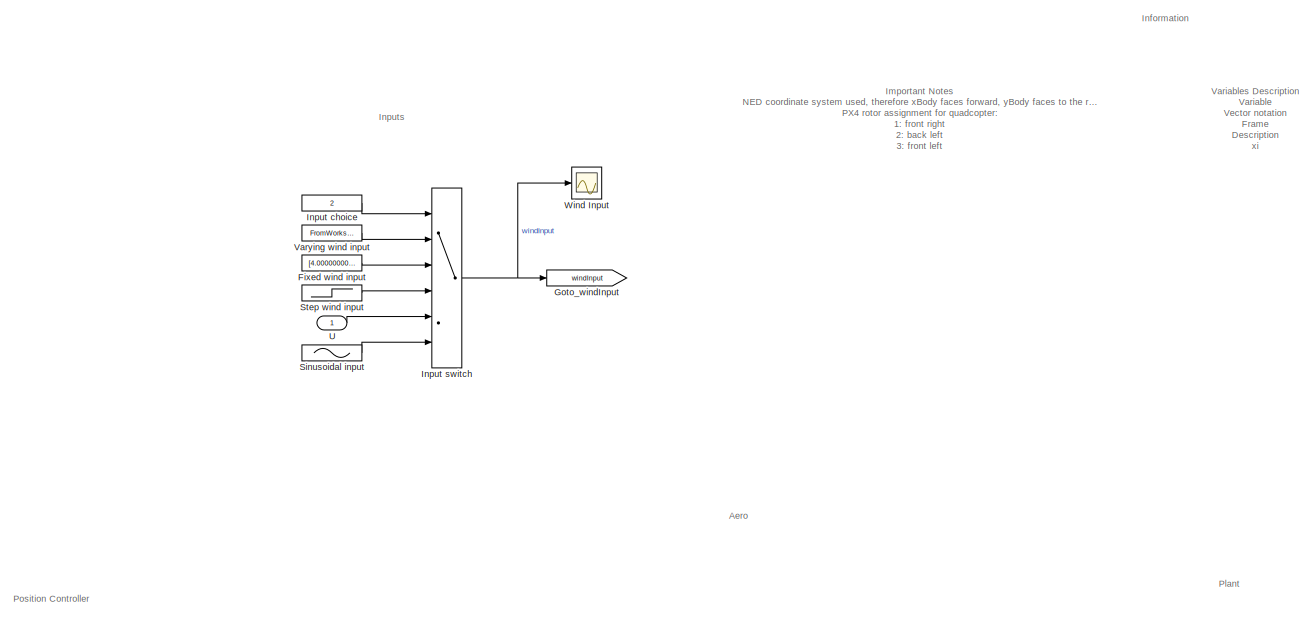
[diagram: root canvas - part 1/5, top center region]
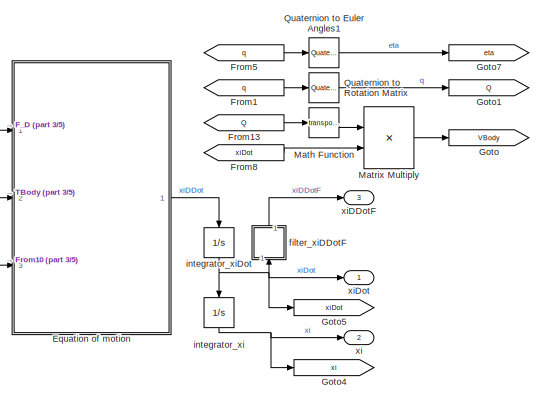
[diagram: root canvas - part 2/5, middle right region]
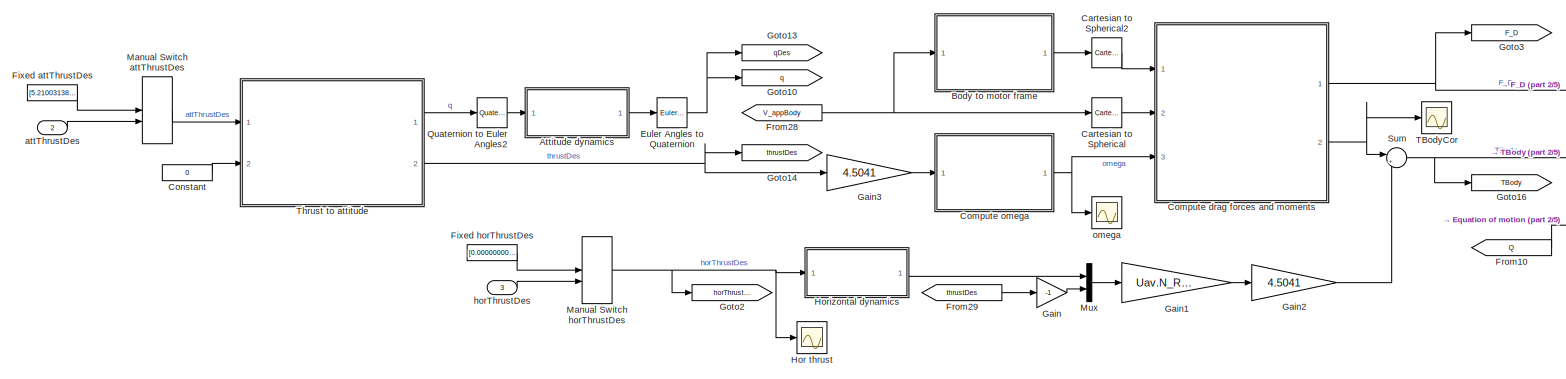
[diagram: root canvas - part 3/5, full width, middle band]
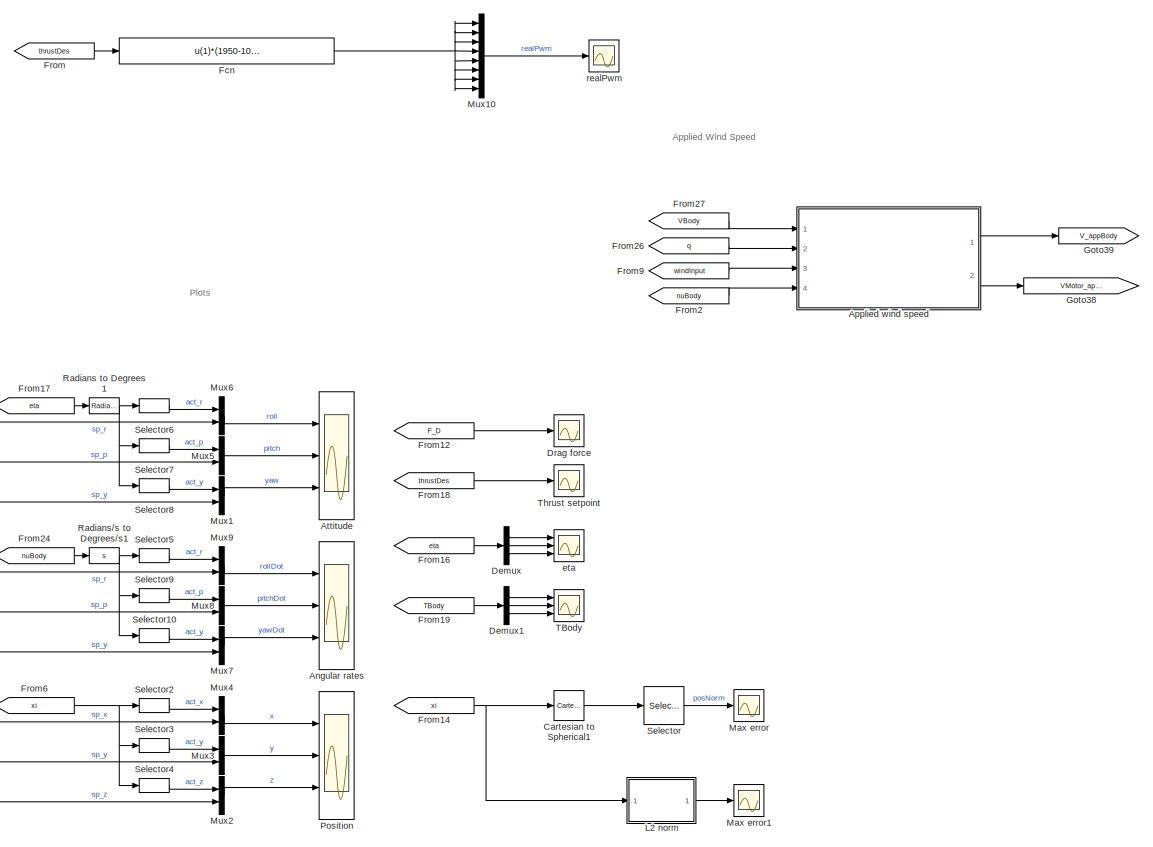
[diagram: root canvas - part 4/5, bottom right region]
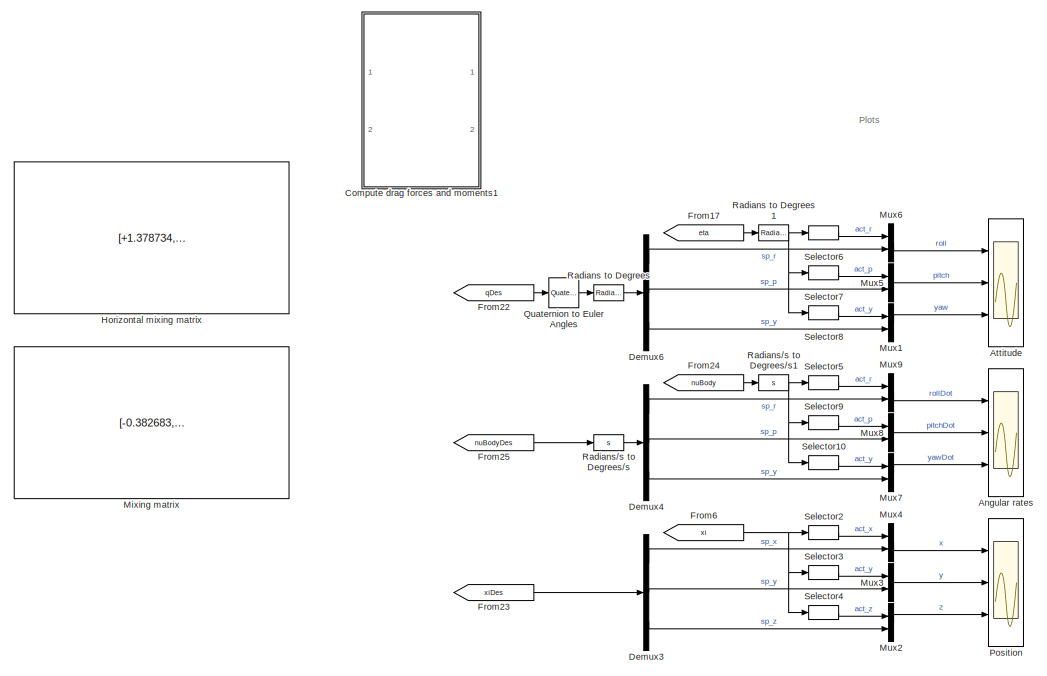
[diagram: root canvas - part 5/5, bottom center region]
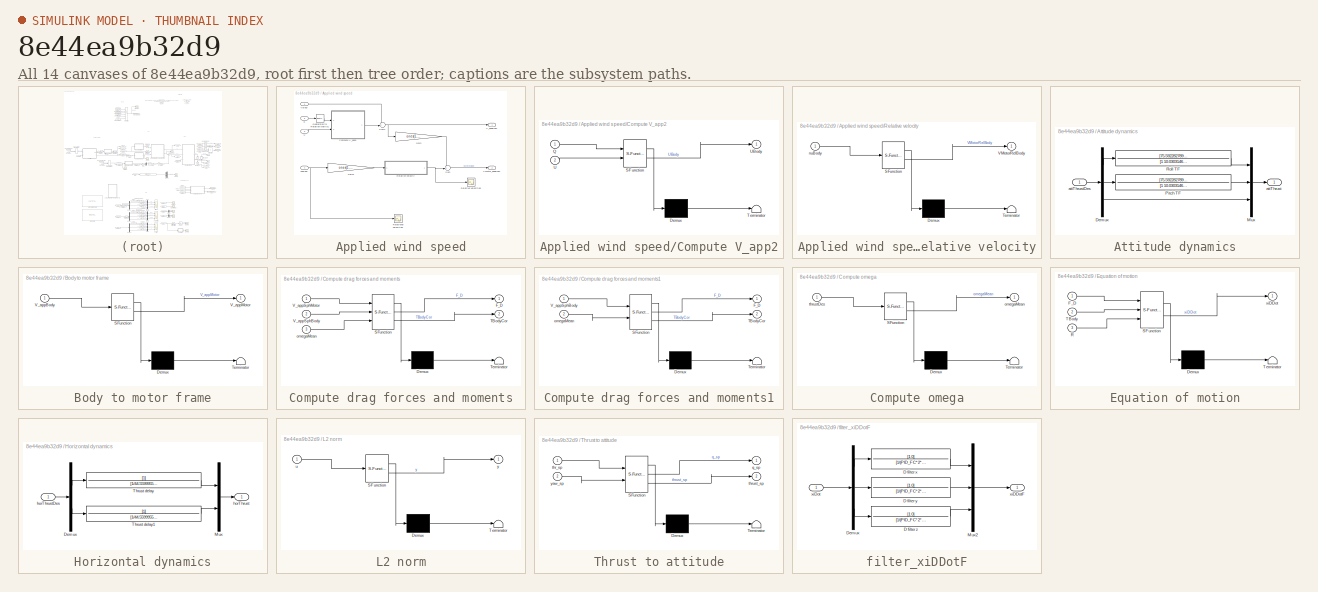
[diagram: thumbnail index - all 14 canvases of the model, root first then tree order]
MODEL slx_8e44ea9b32d9
KIND model
CONFIG AbsTol = auto
CONFIG EnableMultiTasking = on
CONFIG FixedStep = auto
CONFIG MaxStep = Simulation.TS_MAX
CONFIG MinStep = auto
CONFIG PreLoadFcn = % InitializeParameters;
CONFIG RelTol = 1e-3
CONFIG SampleTimeConstraint = Unconstrained
CONFIG SolverName = VariableStepAuto
CONFIG StartTime = 0.0
CONFIG StopTime = Simulation.T_END
BLOCK [Scope] Angular rates
  Floating = off
  NumInputPorts = 3
  Ports = [3]
  ScopeSpecificationString = Simulink.scopes.TimeScopeBlockCfg('CurrentConfiguration', extmgr.ConfigurationSet(extmgr.Configuration('Core','General UI',true),extmgr.Configuration('Core','Source UI',true),extmgr.Configuration('Sources','WiredSimulink',true,'DataLoggingVariableName','ScopeData1'),extmgr.Configuration('Visuals','Time Domain',true,'SerializedDisplays',{struct('MinYLimReal','-4.01617','MaxYLimReal','7.15197','YLab...<+2839ch>
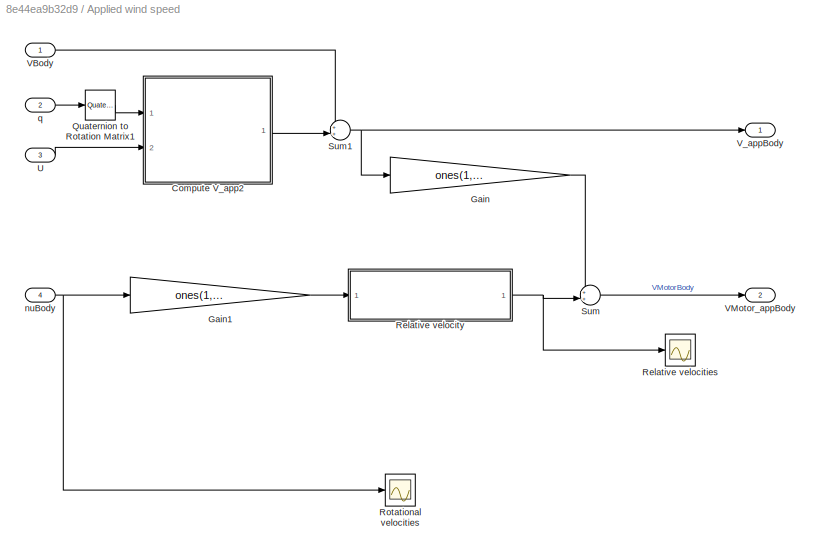
BLOCK [SubSystem] Applied wind speed
  Ports = [4, 2]
  RequestExecContextInheritance = off
BLOCK [SubSystem] Applied wind speed/Compute V_app2
  ErrorFcn = Stateflow.Translate.translate
  PermitHierarchicalResolution = ExplicitOnly
  Ports = [2, 1]
  RequestExecContextInheritance = off
  SFBlockType = MATLAB Function
  TreatAsAtomicUnit = on
BLOCK [Demux] Applied wind speed/Compute V_app2/ Demux 
  Outputs = 1
  Ports = [1, 1]
BLOCK [S-Function] Applied wind speed/Compute V_app2/ SFunction 
  EnableBusSupport = on
  FunctionName = sf_sfun
  PortCounts = [2 2]
  Ports = [2, 2]
  SFcnIsStateOwnerBlock = off
  SFunctionDeploymentMode = off
  Tag = Stateflow S-Function 5
BLOCK [Terminator] Applied wind speed/Compute V_app2/ Terminator 
BLOCK [Inport] Applied wind speed/Compute V_app2/Q
BLOCK [Inport] Applied wind speed/Compute V_app2/U
  Port = 2
BLOCK [Outport] Applied wind speed/Compute V_app2/UBody
  VectorParamsAs1DForOutWhenUnconnected = off
BLOCK [Gain] Applied wind speed/Gain
  Gain = ones(1,Uav.N_ROTORS)
  Multiplication = Matrix(u*K)
BLOCK [Gain] Applied wind speed/Gain1
  Gain = ones(1,Uav.N_ROTORS)
  Multiplication = Matrix(u*K)
BLOCK [Reference] Applied wind speed/Quaternion to Rotation Matrix1  REF=QuaternionLibrary/Quaternion
to Rotation Matrix
  Ports = [1, 1]
  SourceBlock = QuaternionLibrary/Quaternion\nto Rotation Matrix
BLOCK [Scope] Applied wind speed/Relative velocities
  Floating = off
  NumInputPorts = 1
  Ports = [1]
  ScopeSpecificationString = Simulink.scopes.TimeScopeBlockCfg('CurrentConfiguration', extmgr.ConfigurationSet(extmgr.Configuration('Core','General UI',true),extmgr.Configuration('Core','Source UI',true),extmgr.Configuration('Sources','WiredSimulink',true,'DataLoggingVariableName','ScopeData7'),extmgr.Configuration('Visuals','Time Domain',true,'SerializedDisplays',{struct('MinYLimReal','-0.10082','MaxYLimReal','0.10082','YLab...<+1971ch>
BLOCK [SubSystem] Applied wind speed/Relative velocity
  ErrorFcn = Stateflow.Translate.translate
  PermitHierarchicalResolution = ExplicitOnly
  Ports = [1, 1]
  RequestExecContextInheritance = off
  SFBlockType = MATLAB Function
  TreatAsAtomicUnit = on
BLOCK [Demux] Applied wind speed/Relative velocity/ Demux 
  Outputs = 1
  Ports = [1, 1]
BLOCK [S-Function] Applied wind speed/Relative velocity/ SFunction 
  EnableBusSupport = on
  FunctionName = sf_sfun
  Parameters = Uav
  PortCounts = [1 2]
  Ports = [1, 2]
  SFcnIsStateOwnerBlock = off
  SFunctionDeploymentMode = off
  Tag = Stateflow S-Function 4
BLOCK [Terminator] Applied wind speed/Relative velocity/ Terminator 
BLOCK [Outport] Applied wind speed/Relative velocity/VMotorRelBody
  VectorParamsAs1DForOutWhenUnconnected = off
BLOCK [Inport] Applied wind speed/Relative velocity/nuBody
BLOCK [Scope] Applied wind speed/Rotational velocities
  Floating = off
  NumInputPorts = 1
  Ports = [1]
  ScopeSpecificationString = Simulink.scopes.TimeScopeBlockCfg('CurrentConfiguration', extmgr.ConfigurationSet(extmgr.Configuration('Core','General UI',true),extmgr.Configuration('Core','Source UI',true),extmgr.Configuration('Sources','WiredSimulink',true,'DataLoggingVariableName','ScopeData8'),extmgr.Configuration('Visuals','Time Domain',true,'SerializedDisplays',{struct('MinYLimReal','-0.22625','MaxYLimReal','0.41313','YLab...<+1461ch>
BLOCK [Sum] Applied wind speed/Sum
  Inputs = ++|
  Ports = [2, 1]
BLOCK [Sum] Applied wind speed/Sum1
  Inputs = ++|
  Ports = [2, 1]
BLOCK [Inport] Applied wind speed/U
  Port = 3
  Unit = m/s
BLOCK [Inport] Applied wind speed/VBody
  Unit = m/s
BLOCK [Outport] Applied wind speed/VMotor_appBody
  Port = 2
  PortDimensions = [3,Uav.N_ROTORS]
  Unit = m/s
  VectorParamsAs1DForOutWhenUnconnected = off
BLOCK [Outport] Applied wind speed/V_appBody
  Unit = m/s
  VectorParamsAs1DForOutWhenUnconnected = off
BLOCK [Inport] Applied wind speed/nuBody
  Port = 4
  Unit = rad/s
BLOCK [Inport] Applied wind speed/q
  Port = 2
BLOCK [Scope] Attitude
  Floating = off
  NumInputPorts = 3
  Ports = [3]
  ScopeSpecificationString = Simulink.scopes.TimeScopeBlockCfg('CurrentConfiguration', extmgr.ConfigurationSet(extmgr.Configuration('Core','General UI',true),extmgr.Configuration('Core','Source UI',true),extmgr.Configuration('Sources','WiredSimulink',true,'DataLoggingVariableName','ScopeData2'),extmgr.Configuration('Visuals','Time Domain',true,'SerializedDisplays',{struct('MinYLimReal','-1.00000','MaxYLimReal','1.00000','YLab...<+3140ch>
BLOCK [SubSystem] Attitude dynamics
  Ports = [1, 1]
  RequestExecContextInheritance = off
BLOCK [Demux] Attitude dynamics/Demux
  Outputs = 3
  Ports = [1, 3]
BLOCK [Mux] Attitude dynamics/Mux
  DisplayOption = bar
  Inputs = 3
  Ports = [3, 1]
BLOCK [TransferFcn] Attitude dynamics/Pitch TF
  ContinuousStateAttributes = {'pitchDot', 'pitch'}
  Denominator = [1 10.0303146294993 75.5922827897279]
  Numerator = [75.5922827897279]
BLOCK [TransferFcn] Attitude dynamics/Roll TF
  ContinuousStateAttributes = {'rollDot', 'roll'}
  Denominator = [1 10.0303146294993 75.5922827897279]
  Numerator = [75.5922827897279]
BLOCK [Outport] Attitude dynamics/attThrust
  VectorParamsAs1DForOutWhenUnconnected = off
BLOCK [Inport] Attitude dynamics/attThrustDes
BLOCK [SubSystem] Body to motor frame
  ErrorFcn = Stateflow.Translate.translate
  PermitHierarchicalResolution = ExplicitOnly
  Ports = [1, 1]
  RequestExecContextInheritance = off
  SFBlockType = MATLAB Function
  TreatAsAtomicUnit = on
BLOCK [Demux] Body to motor frame/ Demux 
  Outputs = 1
  Ports = [1, 1]
BLOCK [S-Function] Body to motor frame/ SFunction 
  EnableBusSupport = on
  FunctionName = sf_sfun
  Parameters = Uav
  PortCounts = [1 2]
  Ports = [1, 2]
  SFcnIsStateOwnerBlock = off
  SFunctionDeploymentMode = off
  Tag = Stateflow S-Function 1
BLOCK [Terminator] Body to motor frame/ Terminator 
BLOCK [Inport] Body to motor frame/V_appBody
BLOCK [Outport] Body to motor frame/V_appMotor
  VectorParamsAs1DForOutWhenUnconnected = off
BLOCK [Reference] Cartesian to Spherical  REF=QuaternionLibrary/Cartesian
to Spherical
  Ports = [1, 1]
  SourceBlock = QuaternionLibrary/Cartesian\nto Spherical
BLOCK [Reference] Cartesian to Spherical1  REF=QuaternionLibrary/Cartesian
to Spherical
  Ports = [1, 1]
  SourceBlock = QuaternionLibrary/Cartesian\nto Spherical
BLOCK [Reference] Cartesian to Spherical2  REF=QuaternionLibrary/Cartesian
to Spherical
  Ports = [1, 1]
  SourceBlock = QuaternionLibrary/Cartesian\nto Spherical
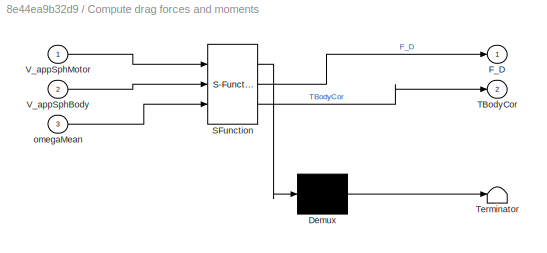
BLOCK [SubSystem] Compute drag forces and moments
  ErrorFcn = Stateflow.Translate.translate
  PermitHierarchicalResolution = ExplicitOnly
  Ports = [3, 2]
  RequestExecContextInheritance = off
  SFBlockType = MATLAB Function
  TreatAsAtomicUnit = on
BLOCK [Demux] Compute drag forces and moments/ Demux 
  Outputs = 1
  Ports = [1, 1]
BLOCK [S-Function] Compute drag forces and moments/ SFunction 
  EnableBusSupport = on
  FunctionName = sf_sfun
  Parameters = Aero,Uav
  PortCounts = [3 3]
  Ports = [3, 3]
  SFcnIsStateOwnerBlock = off
  SFunctionDeploymentMode = off
  Tag = Stateflow S-Function 9
BLOCK [Terminator] Compute drag forces and moments/ Terminator 
BLOCK [Outport] Compute drag forces and moments/F_D
  VectorParamsAs1DForOutWhenUnconnected = off
BLOCK [Outport] Compute drag forces and moments/TBodyCor
  Port = 2
  VectorParamsAs1DForOutWhenUnconnected = off
BLOCK [Inport] Compute drag forces and moments/V_appSphBody
  Port = 2
BLOCK [Inport] Compute drag forces and moments/V_appSphMotor
BLOCK [Inport] Compute drag forces and moments/omegaMean
  Port = 3
BLOCK [SubSystem] Compute drag forces and moments1
  Commented = on
  ErrorFcn = Stateflow.Translate.translate
  PermitHierarchicalResolution = ExplicitOnly
  Ports = [2, 2]
  RequestExecContextInheritance = off
  SFBlockType = MATLAB Function
  TreatAsAtomicUnit = on
BLOCK [Demux] Compute drag forces and moments1/ Demux 
  Outputs = 1
  Ports = [1, 1]
BLOCK [S-Function] Compute drag forces and moments1/ SFunction 
  EnableBusSupport = on
  FunctionName = sf_sfun
  Parameters = Aero,Uav
  PortCounts = [2 3]
  Ports = [2, 3]
  SFcnIsStateOwnerBlock = off
  SFunctionDeploymentMode = off
  Tag = Stateflow S-Function 3
BLOCK [Terminator] Compute drag forces and moments1/ Terminator 
BLOCK [Outport] Compute drag forces and moments1/F_D
  VectorParamsAs1DForOutWhenUnconnected = off
BLOCK [Outport] Compute drag forces and moments1/TBodyCor
  Port = 2
  VectorParamsAs1DForOutWhenUnconnected = off
BLOCK [Inport] Compute drag forces and moments1/V_appSphBody
BLOCK [Inport] Compute drag forces and moments1/omegaMean
  Port = 2
BLOCK [SubSystem] Compute omega
  ErrorFcn = Stateflow.Translate.translate
  PermitHierarchicalResolution = ExplicitOnly
  Ports = [1, 1]
  RequestExecContextInheritance = off
  SFBlockType = MATLAB Function
  TreatAsAtomicUnit = on
BLOCK [Demux] Compute omega/ Demux 
  Outputs = 1
  Ports = [1, 1]
BLOCK [S-Function] Compute omega/ SFunction 
  EnableBusSupport = on
  FunctionName = sf_sfun
  Parameters = Aero,Uav
  PortCounts = [1 2]
  Ports = [1, 2]
  SFcnIsStateOwnerBlock = off
  SFunctionDeploymentMode = off
  Tag = Stateflow S-Function 2
BLOCK [Terminator] Compute omega/ Terminator 
BLOCK [Outport] Compute omega/omegaMean
  VectorParamsAs1DForOutWhenUnconnected = off
BLOCK [Inport] Compute omega/thrustDes
BLOCK [Constant] Constant
  Value = 0
BLOCK [Demux] Demux
  Outputs = 3
  Ports = [1, 3]
BLOCK [Demux] Demux1
  Outputs = 3
  Ports = [1, 3]
BLOCK [Demux] Demux3
  Outputs = 3
  Ports = [1, 3]
BLOCK [Demux] Demux4
  Outputs = 3
  Ports = [1, 3]
BLOCK [Demux] Demux6
  Outputs = 3
  Ports = [1, 3]
BLOCK [Scope] Drag force
  Floating = off
  NumInputPorts = 1
  Ports = [1]
  ScopeSpecificationString = Simulink.scopes.TimeScopeBlockCfg('CurrentConfiguration', extmgr.ConfigurationSet(extmgr.Configuration('Core','General UI',true),extmgr.Configuration('Core','Source UI',true),extmgr.Configuration('Sources','WiredSimulink',true,'DataLoggingVariableName','ScopeData3'),extmgr.Configuration('Visuals','Time Domain',true,'SerializedDisplays',{struct('MinYLimReal','-0.87753','MaxYLimReal','0.20159','YLab...<+1461ch>
BLOCK [SubSystem] Equation of motion
  ErrorFcn = Stateflow.Translate.translate
  PermitHierarchicalResolution = ExplicitOnly
  Ports = [3, 1]
  RequestExecContextInheritance = off
  SFBlockType = MATLAB Function
  TreatAsAtomicUnit = on
BLOCK [Demux] Equation of motion/ Demux 
  Outputs = 1
  Ports = [1, 1]
BLOCK [S-Function] Equation of motion/ SFunction 
  EnableBusSupport = on
  FunctionName = sf_sfun
  Parameters = Uav
  PortCounts = [3 2]
  Ports = [3, 2]
  SFcnIsStateOwnerBlock = off
  SFunctionDeploymentMode = off
  Tag = Stateflow S-Function 6
BLOCK [Terminator] Equation of motion/ Terminator 
BLOCK [Inport] Equation of motion/F_D
BLOCK [Inport] Equation of motion/R
  Port = 3
BLOCK [Inport] Equation of motion/TBody
  Port = 2
BLOCK [Outport] Equation of motion/xiDDot
  VectorParamsAs1DForOutWhenUnconnected = off
BLOCK [Reference] Euler Angles to Quaternion  REF=QuaternionLibrary/Euler Angles
to Quaternion
  Ports = [1, 1]
  SourceBlock = QuaternionLibrary/Euler Angles\nto Quaternion
BLOCK [Fcn] Fcn
  Expr = u(1)*(1950-1075) + 1075
BLOCK [Constant] Fixed attThrustDes
  Value = [5.210031380081574e-02;0.000000000000000e+00;-5.304841936728901e-01]
BLOCK [Constant] Fixed horThrustDes
  Value = [0.000000000000000e+00;0.000000000000000e+00]
BLOCK [Constant] Fixed wind input
  Value = [4.000000000000000e+00;0.000000000000000e+00;0.000000000000000e+00]
BLOCK [From] From
  GotoTag = thrustDes
BLOCK [From] From1
  GotoTag = q
BLOCK [From] From10
  GotoTag = Q
BLOCK [From] From12
  GotoTag = F_D
BLOCK [From] From13
  GotoTag = Q
BLOCK [From] From14
  GotoTag = xi
BLOCK [From] From16
  GotoTag = eta
BLOCK [From] From17
  GotoTag = eta
BLOCK [From] From18
  GotoTag = thrustDes
BLOCK [From] From19
  GotoTag = TBody
BLOCK [From] From2
  GotoTag = nuBody
BLOCK [From] From22
  GotoTag = qDes
BLOCK [From] From23
  GotoTag = xiDes
BLOCK [From] From24
  GotoTag = nuBody
BLOCK [From] From25
  GotoTag = nuBodyDes
BLOCK [From] From26
  GotoTag = q
BLOCK [From] From27
  GotoTag = VBody
BLOCK [From] From28
  GotoTag = V_appBody
BLOCK [From] From29
  GotoTag = thrustDes
BLOCK [From] From5
  GotoTag = q
BLOCK [From] From6
  GotoTag = xi
BLOCK [From] From8
  GotoTag = xiDot
BLOCK [From] From9
  GotoTag = windInput
BLOCK [Gain] Gain
  Gain = -1
BLOCK [Gain] Gain1
  Gain = Uav.N_ROTORS
BLOCK [Gain] Gain2
  Gain = 4.5041
BLOCK [Gain] Gain3
  Gain = 4.5041
BLOCK [Goto] Goto
  GotoTag = VBody
BLOCK [Goto] Goto1
  GotoTag = Q
BLOCK [Goto] Goto10
  GotoTag = q
BLOCK [Goto] Goto13
  GotoTag = qDes
BLOCK [Goto] Goto14
  GotoTag = thrustDes
BLOCK [Goto] Goto16
  GotoTag = TBody
BLOCK [Goto] Goto2
  GotoTag = horThrustDes
BLOCK [Goto] Goto3
  GotoTag = F_D
BLOCK [Goto] Goto38
  GotoTag = VMotor_appBody
BLOCK [Goto] Goto39
  GotoTag = V_appBody
BLOCK [Goto] Goto4
  GotoTag = xi
BLOCK [Goto] Goto5
  GotoTag = xiDot
BLOCK [Goto] Goto7
  GotoTag = eta
BLOCK [Goto] Goto_windInput
  GotoTag = windInput
BLOCK [Scope] Hor thrust
  Floating = off
  NumInputPorts = 1
  Ports = [1]
  ScopeSpecificationString = Simulink.scopes.TimeScopeBlockCfg('CurrentConfiguration', extmgr.ConfigurationSet(extmgr.Configuration('Core','General UI',true),extmgr.Configuration('Core','Source UI',true),extmgr.Configuration('Sources','WiredSimulink',true,'DataLoggingVariableName','ScopeData1'),extmgr.Configuration('Visuals','Time Domain',true,'SerializedDisplays',{struct('MinYLimReal','-1.00000','MaxYLimReal','1.00000','YLab...<+1464ch>
BLOCK [SubSystem] Horizontal dynamics
  Ports = [1, 1]
  RequestExecContextInheritance = off
BLOCK [Demux] Horizontal dynamics/Demux
  Outputs = 2
  Ports = [1, 2]
BLOCK [Mux] Horizontal dynamics/Mux
  DisplayOption = bar
  Inputs = 2
  Ports = [2, 1]
BLOCK [TransferFcn] Horizontal dynamics/Thrust delay
  ContinuousStateAttributes = 'Th_x'
  Denominator = [1/44.5599955594164,\n1]
BLOCK [TransferFcn] Horizontal dynamics/Thrust delay1
  ContinuousStateAttributes = 'Th_y'
  Denominator = [1/44.5599955594164,\n1]
BLOCK [Outport] Horizontal dynamics/horThrust
  VectorParamsAs1DForOutWhenUnconnected = off
BLOCK [Inport] Horizontal dynamics/horThrustDes
BLOCK [Constant] Horizontal mixing matrix
  Commented = on
  Value = [+1.378734, -3.328559;\n -1.378734, +3.328559;\n -3.328559, +1.378734;\n -1.378734, -3.328559;\n +1.378734, +3.328559;\n +3.328559, -1.378734;\n -3.328559, -1.378734;\n +3.328559, +1.378734]
BLOCK [Constant] Input choice
  Value = 2
BLOCK [MultiPortSwitch] Input switch
  InputSameDT = off
  Inputs = 5
  Ports = [6, 1]
  SaturateOnIntegerOverflow = off
BLOCK [SubSystem] L2 norm
  ErrorFcn = Stateflow.Translate.translate
  PermitHierarchicalResolution = ExplicitOnly
  Ports = [1, 1]
  RequestExecContextInheritance = off
  SFBlockType = MATLAB Function
  TreatAsAtomicUnit = on
BLOCK [Demux] L2 norm/ Demux 
  Outputs = 1
  Ports = [1, 1]
BLOCK [S-Function] L2 norm/ SFunction 
  EnableBusSupport = on
  FunctionName = sf_sfun
  PortCounts = [1 2]
  Ports = [1, 2]
  SFcnIsStateOwnerBlock = off
  SFunctionDeploymentMode = off
  Tag = Stateflow S-Function 15
BLOCK [Terminator] L2 norm/ Terminator 
BLOCK [Inport] L2 norm/u
BLOCK [Outport] L2 norm/y
  VectorParamsAs1DForOutWhenUnconnected = off
BLOCK [ManualSwitch] Manual Switch attThrustDes
BLOCK [ManualSwitch] Manual Switch horThrustDes
BLOCK [Math] Math Function
  Operator = transpose
  Ports = [1, 1]
  SignedPower = on
BLOCK [Product] Matrix Multiply
  Multiplication = Matrix(*)
  Ports = [2, 1]
BLOCK [Scope] Max error
  Floating = off
  NumInputPorts = 1
  Ports = [1]
  ScopeSpecificationString = Simulink.scopes.TimeScopeBlockCfg('CurrentConfiguration', extmgr.ConfigurationSet(extmgr.Configuration('Core','General UI',true),extmgr.Configuration('Core','Source UI',true),extmgr.Configuration('Sources','WiredSimulink',true,'DataLoggingVariableName','ScopeData4'),extmgr.Configuration('Visuals','Time Domain',true,'SerializedDisplays',{struct('MinYLimReal','-0.00003','MaxYLimReal','0.00027','YLab...<+1439ch>
BLOCK [Scope] Max error1
  Floating = off
  NumInputPorts = 1
  Ports = [1]
  ScopeSpecificationString = Simulink.scopes.TimeScopeBlockCfg('CurrentConfiguration', extmgr.ConfigurationSet(extmgr.Configuration('Core','General UI',true),extmgr.Configuration('Core','Source UI',true),extmgr.Configuration('Sources','WiredSimulink',true,'DataLoggingVariableName','ScopeData5'),extmgr.Configuration('Visuals','Time Domain',true,'SerializedDisplays',{struct('MinYLimReal','-0.03873','MaxYLimReal','0.34858','YLab...<+1449ch>
BLOCK [Constant] Mixing matrix
  Commented = on
  Value = [-0.382683,  0.923880,  1.000000,  1.000000 ;\n  0.382683, -0.923880,  1.000000,  1.000000 ;\n -0.923880,  0.382683, -1.000000,  1.000000 ;\n -0.382683, -0.923880, -1.000000,  1.000000 ;\n  0.382683,  0.923880, -1.000000,  1.000000 ;\n  0.923880, -0.382683, -1.000000,  1.000000 ;\n  0.923880,  0.382683,  1.000000,  1.000000 ;\n -0.923880, -0.382683,  1.000000,  1.000000 ]
BLOCK [Mux] Mux
  DisplayOption = bar
  Inputs = 2
  Ports = [2, 1]
BLOCK [Mux] Mux1
  DisplayOption = bar
  Inputs = 2
  Ports = [2, 1]
BLOCK [Mux] Mux10
  DisplayOption = bar
  Inputs = 8
  Ports = [8, 1]
BLOCK [Mux] Mux2
  DisplayOption = bar
  Inputs = 2
  Ports = [2, 1]
BLOCK [Mux] Mux3
  DisplayOption = bar
  Inputs = 2
  Ports = [2, 1]
BLOCK [Mux] Mux4
  DisplayOption = bar
  Inputs = 2
  Ports = [2, 1]
BLOCK [Mux] Mux5
  DisplayOption = bar
  Inputs = 2
  Ports = [2, 1]
BLOCK [Mux] Mux6
  DisplayOption = bar
  Inputs = 2
  Ports = [2, 1]
BLOCK [Mux] Mux7
  DisplayOption = bar
  Inputs = 2
  Ports = [2, 1]
BLOCK [Mux] Mux8
  DisplayOption = bar
  Inputs = 2
  Ports = [2, 1]
BLOCK [Mux] Mux9
  DisplayOption = bar
  Inputs = 2
  Ports = [2, 1]
BLOCK [Scope] Position
  Floating = off
  NumInputPorts = 3
  Ports = [3]
  ScopeSpecificationString = Simulink.scopes.TimeScopeBlockCfg('CurrentConfiguration', extmgr.ConfigurationSet(extmgr.Configuration('Core','General UI',true),extmgr.Configuration('Core','Source UI',true),extmgr.Configuration('Sources','WiredSimulink',true,'DataLoggingVariableName','ScopeData6'),extmgr.Configuration('Visuals','Time Domain',true,'SerializedDisplays',{struct('MinYLimReal','-10.61323','MaxYLimReal','1.17925','YLa...<+2785ch>
BLOCK [Reference] Quaternion to Euler Angles  REF=QuaternionLibrary/Quaternion
to Euler Angles
  Ports = [1, 1]
  SourceBlock = QuaternionLibrary/Quaternion\nto Euler Angles
BLOCK [Reference] Quaternion to Euler Angles1  REF=QuaternionLibrary/Quaternion
to Euler Angles
  Ports = [1, 1]
  SourceBlock = QuaternionLibrary/Quaternion\nto Euler Angles
BLOCK [Reference] Quaternion to Euler Angles2  REF=QuaternionLibrary/Quaternion
to Euler Angles
  Ports = [1, 1]
  SourceBlock = QuaternionLibrary/Quaternion\nto Euler Angles
BLOCK [Reference] Quaternion to Rotation Matrix  REF=QuaternionLibrary/Quaternion
to Rotation Matrix
  Ports = [1, 1]
  SourceBlock = QuaternionLibrary/Quaternion\nto Rotation Matrix
BLOCK [Reference] Radians to Degrees   REF=QuaternionLibrary/Radians
to Degrees 
  Ports = [1, 1]
  SourceBlock = QuaternionLibrary/Radians\nto Degrees
BLOCK [Reference] Radians to Degrees 1  REF=QuaternionLibrary/Radians
to Degrees 
  Ports = [1, 1]
  SourceBlock = QuaternionLibrary/Radians\nto Degrees
BLOCK [Reference] Radians//s to Degrees//s  REF=QuaternionLibrary/Radians//s
to Degrees//s
  Ports = [1, 1]
  SourceBlock = QuaternionLibrary/Radians//s\nto Degrees//s
BLOCK [Reference] Radians//s to Degrees//s1  REF=QuaternionLibrary/Radians//s
to Degrees//s
  Ports = [1, 1]
  SourceBlock = QuaternionLibrary/Radians//s\nto Degrees//s
BLOCK [Selector] Selector
  IndexOptions = Index vector (dialog)
  Indices = [3]
  InputPortWidth = 3
  OutputSizes = 1
  Ports = [1, 1]
BLOCK [Selector] Selector10
  IndexOptions = Index vector (dialog)
  Indices = 3
  InputPortWidth = 3
  OutputSizes = 1
  Ports = [1, 1]
BLOCK [Selector] Selector2
  IndexOptions = Index vector (dialog)
  Indices = 1
  InputPortWidth = 3
  OutputSizes = 1
  Ports = [1, 1]
BLOCK [Selector] Selector3
  IndexOptions = Index vector (dialog)
  Indices = 2
  InputPortWidth = 3
  OutputSizes = 1
  Ports = [1, 1]
BLOCK [Selector] Selector4
  IndexOptions = Index vector (dialog)
  Indices = 3
  InputPortWidth = 3
  OutputSizes = 1
  Ports = [1, 1]
BLOCK [Selector] Selector5
  IndexOptions = Index vector (dialog)
  Indices = 1
  InputPortWidth = 3
  OutputSizes = 1
  Ports = [1, 1]
BLOCK [Selector] Selector6
  IndexOptions = Index vector (dialog)
  Indices = 1
  InputPortWidth = 3
  OutputSizes = 1
  Ports = [1, 1]
BLOCK [Selector] Selector7
  IndexOptions = Index vector (dialog)
  Indices = 2
  InputPortWidth = 3
  OutputSizes = 1
  Ports = [1, 1]
BLOCK [Selector] Selector8
  IndexOptions = Index vector (dialog)
  Indices = 3
  InputPortWidth = 3
  OutputSizes = 1
  Ports = [1, 1]
BLOCK [Selector] Selector9
  IndexOptions = Index vector (dialog)
  Indices = 2
  InputPortWidth = 3
  OutputSizes = 1
  Ports = [1, 1]
BLOCK [Sin] Sinusoidal input
  Amplitude = Wind.Ampl
  Bias = Wind.Bias
  Commented = on
  Frequency = Wind.Freq
  Ports = [0, 1]
  SampleTime = 0
BLOCK [Step] Step wind input
  After = Wind.StepFinal
  Before = Wind.StepInit
  Commented = on
  SampleTime = 0
  Time = Wind.StepTime
BLOCK [Sum] Sum
  Inputs = |++
  Ports = [2, 1]
BLOCK [Scope] TBody
  Floating = off
  NumInputPorts = 3
  Ports = [3]
  ScopeSpecificationString = Simulink.scopes.TimeScopeBlockCfg('CurrentConfiguration', extmgr.ConfigurationSet(extmgr.Configuration('Core','General UI',true),extmgr.Configuration('Core','Source UI',true),extmgr.Configuration('Sources','WiredSimulink',true,'DataLoggingVariableName','ScopeData7'),extmgr.Configuration('Visuals','Time Domain',true,'SerializedDisplays',{struct('MinYLimReal','-0.27662','MaxYLimReal','-0.26735','YLa...<+2749ch>
BLOCK [Scope] TBodyCor
  Floating = off
  NumInputPorts = 1
  Ports = [1]
  ScopeSpecificationString = Simulink.scopes.TimeScopeBlockCfg('CurrentConfiguration', extmgr.ConfigurationSet(extmgr.Configuration('Core','General UI',true),extmgr.Configuration('Core','Source UI',true),extmgr.Configuration('Sources','WiredSimulink',true,'DataLoggingVariableName','ScopeData3'),extmgr.Configuration('Visuals','Time Domain',true,'SerializedDisplays',{struct('MinYLimReal','-1.6235','MaxYLimReal','0.18039','YLabe...<+1559ch>
BLOCK [Scope] Thrust setpoint
  Floating = off
  NumInputPorts = 1
  Ports = [1]
  ScopeSpecificationString = Simulink.scopes.TimeScopeBlockCfg('CurrentConfiguration', extmgr.ConfigurationSet(extmgr.Configuration('Core','General UI',true),extmgr.Configuration('Core','Source UI',true),extmgr.Configuration('Sources','WiredSimulink',true,'DataLoggingVariableName','ScopeData8'),extmgr.Configuration('Visuals','Time Domain',true,'SerializedDisplays',{struct('MinYLimReal','-3.17681','MaxYLimReal','34.03722','YLa...<+1448ch>
BLOCK [SubSystem] Thrust to attitude
  ErrorFcn = Stateflow.Translate.translate
  PermitHierarchicalResolution = ExplicitOnly
  Ports = [2, 2]
  RequestExecContextInheritance = off
  SFBlockType = MATLAB Function
  TreatAsAtomicUnit = on
BLOCK [Demux] Thrust to attitude/ Demux 
  Outputs = 1
  Ports = [1, 1]
BLOCK [S-Function] Thrust to attitude/ SFunction 
  EnableBusSupport = on
  FunctionName = sf_sfun
  PortCounts = [2 3]
  Ports = [2, 3]
  SFcnIsStateOwnerBlock = off
  SFunctionDeploymentMode = off
  Tag = Stateflow S-Function 7
BLOCK [Terminator] Thrust to attitude/ Terminator 
BLOCK [Outport] Thrust to attitude/q_sp
  VectorParamsAs1DForOutWhenUnconnected = off
BLOCK [Inport] Thrust to attitude/thr_sp
BLOCK [Outport] Thrust to attitude/thrust_sp
  Port = 2
  VectorParamsAs1DForOutWhenUnconnected = off
BLOCK [Inport] Thrust to attitude/yaw_sp
  Port = 2
BLOCK [Inport] U
  PortDimensions = 3
BLOCK [FromWorkspace] Varying wind input
  Commented = on
  VariableName = windInput
BLOCK [Scope] Wind Input
  Floating = off
  NumInputPorts = 1
  Ports = [1]
  ScopeSpecificationString = Simulink.scopes.TimeScopeBlockCfg('CurrentConfiguration', extmgr.ConfigurationSet(extmgr.Configuration('Core','General UI',true),extmgr.Configuration('Core','Source UI',true),extmgr.Configuration('Sources','WiredSimulink',true,'DataLoggingVariableName','ScopeData1'),extmgr.Configuration('Visuals','Time Domain',true,'SerializedDisplays',{struct('MinYLimReal','-0.5','MaxYLimReal','4.5','YLabelReal',...<+1447ch>
BLOCK [Inport] attThrustDes
  Port = 2
  PortDimensions = 3
BLOCK [Scope] eta
  Floating = off
  NumInputPorts = 3
  Ports = [3]
  ScopeSpecificationString = Simulink.scopes.TimeScopeBlockCfg('CurrentConfiguration', extmgr.ConfigurationSet(extmgr.Configuration('Core','General UI',true),extmgr.Configuration('Core','Source UI',true),extmgr.Configuration('Sources','WiredSimulink',true,'DataLoggingVariableName','ScopeData9'),extmgr.Configuration('Visuals','Time Domain',true,'SerializedDisplays',{struct('MinYLimReal','-1.00000','MaxYLimReal','1.00000','YLab...<+2743ch>
BLOCK [SubSystem] filter_xiDDotF
  NameLocation = right
  Ports = [1, 1]
  RequestExecContextInheritance = off
BLOCK [TransferFcn] filter_xiDDotF/D filter x
  ContinuousStateAttributes = 'velPID_D_x'
  Denominator = [1/(PID_FC*2*pi) 1]
  Numerator = [1 0]
BLOCK [TransferFcn] filter_xiDDotF/D filter y
  ContinuousStateAttributes = 'velPID_D_y'
  Denominator = [1/(PID_FC*2*pi) 1]
  Numerator = [1 0]
BLOCK [TransferFcn] filter_xiDDotF/D filter z
  ContinuousStateAttributes = 'velPID_D_z'
  Denominator = [1/(PID_FC*2*pi) 1]
  Numerator = [1 0]
BLOCK [Demux] filter_xiDDotF/Demux
  Outputs = 3
  Ports = [1, 3]
BLOCK [Mux] filter_xiDDotF/Mux2
  DisplayOption = bar
  Inputs = 3
  Ports = [3, 1]
BLOCK [Outport] filter_xiDDotF/xiDDotF
  Unit = m/s^2
  VectorParamsAs1DForOutWhenUnconnected = off
BLOCK [Inport] filter_xiDDotF/xiDot
  Unit = m/s
BLOCK [Inport] horThrustDes
  Port = 3
  PortDimensions = 2
BLOCK [Integrator] integrator_xi
  ContinuousStateAttributes = 'xi'
  InitialCondition = Initial.XI
  NameLocation = right
  Ports = [1, 1]
BLOCK [Integrator] integrator_xiDot
  ContinuousStateAttributes = 'xiDot'
  InitialCondition = Initial.XI_DOT
  NameLocation = right
  Ports = [1, 1]
BLOCK [Scope] omega
  Floating = off
  NumInputPorts = 1
  Ports = [1]
  ScopeSpecificationString = Simulink.scopes.TimeScopeBlockCfg('CurrentConfiguration', extmgr.ConfigurationSet(extmgr.Configuration('Core','General UI',true),extmgr.Configuration('Core','Source UI',true),extmgr.Configuration('Sources','WiredSimulink',true,'DataLoggingVariableName','ScopeData2'),extmgr.Configuration('Visuals','Time Domain',true,'SerializedDisplays',{struct('MinYLimReal','349.73807','MaxYLimReal','2349.73807','...<+1726ch>
BLOCK [Scope] realPwm
  Floating = off
  NumInputPorts = 1
  Ports = [1]
  ScopeSpecificationString = Simulink.scopes.TimeScopeBlockCfg('CurrentConfiguration', extmgr.ConfigurationSet(extmgr.Configuration('Core','General UI',true),extmgr.Configuration('Core','Source UI',true),extmgr.Configuration('Sources','WiredSimulink',true,'DataLoggingVariableName','ScopeData1'),extmgr.Configuration('Visuals','Time Domain',true,'SerializedDisplays',{struct('MinYLimReal','551.51635','MaxYLimReal','2551.51635','...<+1848ch>
BLOCK [Outport] xi
  Port = 2
  VectorParamsAs1DForOutWhenUnconnected = off
BLOCK [Outport] xiDDotF
  Port = 3
  VectorParamsAs1DForOutWhenUnconnected = off
BLOCK [Outport] xiDot
  VectorParamsAs1DForOutWhenUnconnected = off
ANNOTATION (root): Important Notes NED coordinate system used, therefore xBody faces forward, yBody faces to the right and zBody faces down. PX4 rotor assignment for quadcopter: 1: front right 2: back left 3: front left 4: back right Airframe reference available at: https://dev.px4.io/en/airframes/airframe_reference.html
ANNOTATION (root): Variables Description Variable Vector notation Frame Description xi [x y z] World Position eta [phi theta psi] World Roll pitch yaw orientation nuBody [p q r] Body Angular velocity q [qW qAx1 qAx2 qAx3] World Quaternion orientation Uav.BETA [beta1 ... betaN] Body Angle to motor (CCW)
ANNOTATION (root): Inputs
ANNOTATION (root): Position Controller
ANNOTATION (root): Information
ANNOTATION (root): Plots
ANNOTATION (root): Aero
ANNOTATION (root): Applied Wind Speed
ANNOTATION (root): Plant
LINE Applied wind speed/Compute V_app2:1 -> Applied wind speed/Sum1:2
LINE Applied wind speed/Gain1:1 -> Applied wind speed/Relative velocity:1
LINE Applied wind speed/Gain:1 -> Applied wind speed/Sum:1
LINE Applied wind speed/Quaternion to Rotation Matrix1:1 -> Applied wind speed/Compute V_app2:1
NET Applied wind speed/Relative velocity:1 -> Applied wind speed/Relative velocities:1, Applied wind speed/Sum:2
NET Applied wind speed/Sum1:1 -> Applied wind speed/Gain:1, Applied wind speed/V_appBody:1
LINE Applied wind speed/Sum:1 -> Applied wind speed/VMotor_appBody:1
LINE Applied wind speed/U:1 -> Applied wind speed/Compute V_app2:2
LINE Applied wind speed/VBody:1 -> Applied wind speed/Sum1:1
NET Applied wind speed/nuBody:1 -> Applied wind speed/Gain1:1, Applied wind speed/Rotational velocities:1
LINE Applied wind speed/q:1 -> Applied wind speed/Quaternion to Rotation Matrix1:1
LINE Applied wind speed:1 -> Goto39:1
LINE Applied wind speed:2 -> Goto38:1
LINE Attitude dynamics/Demux:1 -> Attitude dynamics/Roll TF:1
LINE Attitude dynamics/Demux:2 -> Attitude dynamics/Pitch TF:1
LINE Attitude dynamics/Demux:3 -> Attitude dynamics/Mux:3
LINE Attitude dynamics/Mux:1 -> Attitude dynamics/attThrust:1
LINE Attitude dynamics/Pitch TF:1 -> Attitude dynamics/Mux:2
LINE Attitude dynamics/Roll TF:1 -> Attitude dynamics/Mux:1
LINE Attitude dynamics/attThrustDes:1 -> Attitude dynamics/Demux:1
LINE Attitude dynamics:1 -> Euler Angles to Quaternion:1
LINE Body to motor frame:1 -> Cartesian to Spherical2:1
LINE Cartesian to Spherical1:1 -> Selector:1
LINE Cartesian to Spherical2:1 -> Compute drag forces and moments:1
LINE Cartesian to Spherical:1 -> Compute drag forces and moments:2
NET Compute drag forces and moments:1 -> Equation of motion:1, Goto3:1
NET Compute drag forces and moments:2 -> Sum:1, TBodyCor:1
NET Compute omega:1 -> Compute drag forces and moments:3, omega:1
LINE Constant:1 -> Thrust to attitude:2
LINE Demux1:1 -> TBody:1
LINE Demux1:2 -> TBody:2
LINE Demux1:3 -> TBody:3
LINE Demux3:1 -> Mux4:2
LINE Demux3:2 -> Mux3:2
LINE Demux3:3 -> Mux2:2
LINE Demux4:1 -> Mux9:2
LINE Demux4:2 -> Mux8:2
LINE Demux4:3 -> Mux7:2
LINE Demux6:1 -> Mux6:2
LINE Demux6:2 -> Mux5:2
LINE Demux6:3 -> Mux1:2
LINE Demux:1 -> eta:1
LINE Demux:2 -> eta:2
LINE Demux:3 -> eta:3
LINE Equation of motion:1 -> integrator_xiDot:1
NET Euler Angles to Quaternion:1 -> Goto10:1, Goto13:1
NET Fcn:1 -> Mux10:1, Mux10:2, Mux10:3, Mux10:4, Mux10:5, Mux10:6, Mux10:7, Mux10:8
LINE Fixed attThrustDes:1 -> Manual Switch attThrustDes:1
LINE Fixed horThrustDes:1 -> Manual Switch horThrustDes:1
LINE Fixed wind input:1 -> Input switch:3
LINE From10:1 -> Equation of motion:3
LINE From12:1 -> Drag force:1
LINE From13:1 -> Math Function:1
NET From14:1 -> Cartesian to Spherical1:1, L2 norm:1
LINE From16:1 -> Demux:1
LINE From17:1 -> Radians to Degrees 1:1
LINE From18:1 -> Thrust setpoint:1
LINE From19:1 -> Demux1:1
LINE From1:1 -> Quaternion to Rotation Matrix:1
LINE From22:1 -> Quaternion to Euler Angles:1
LINE From23:1 -> Demux3:1
LINE From24:1 -> Radians//s to Degrees//s1:1
LINE From25:1 -> Radians//s to Degrees//s:1
LINE From26:1 -> Applied wind speed:2
LINE From27:1 -> Applied wind speed:1
NET From28:1 -> Body to motor frame:1, Cartesian to Spherical:1
LINE From29:1 -> Gain:1
LINE From2:1 -> Applied wind speed:4
LINE From5:1 -> Quaternion to Euler Angles1:1
NET From6:1 -> Selector2:1, Selector3:1, Selector4:1
LINE From8:1 -> Matrix Multiply:2
LINE From9:1 -> Applied wind speed:3
LINE From:1 -> Fcn:1
LINE Gain1:1 -> Gain2:1
LINE Gain2:1 -> Sum:2
LINE Gain3:1 -> Compute omega:1
LINE Gain:1 -> Mux:2
LINE Horizontal dynamics/Demux:1 -> Horizontal dynamics/Thrust delay:1
LINE Horizontal dynamics/Demux:2 -> Horizontal dynamics/Thrust delay1:1
LINE Horizontal dynamics/Mux:1 -> Horizontal dynamics/horThrust:1
LINE Horizontal dynamics/Thrust delay1:1 -> Horizontal dynamics/Mux:2
LINE Horizontal dynamics/Thrust delay:1 -> Horizontal dynamics/Mux:1
LINE Horizontal dynamics/horThrustDes:1 -> Horizontal dynamics/Demux:1
LINE Horizontal dynamics:1 -> Mux:1
LINE Input choice:1 -> Input switch:1
NET Input switch:1 -> Goto_windInput:1, Wind Input:1
LINE L2 norm:1 -> Max error1:1
LINE Manual Switch attThrustDes:1 -> Thrust to attitude:1
NET Manual Switch horThrustDes:1 -> Goto2:1, Hor thrust:1, Horizontal dynamics:1
LINE Math Function:1 -> Matrix Multiply:1
LINE Matrix Multiply:1 -> Goto:1
LINE Mux10:1 -> realPwm:1
LINE Mux1:1 -> Attitude:3
LINE Mux2:1 -> Position:3
LINE Mux3:1 -> Position:2
LINE Mux4:1 -> Position:1
LINE Mux5:1 -> Attitude:2
LINE Mux6:1 -> Attitude:1
LINE Mux7:1 -> Angular rates:3
LINE Mux8:1 -> Angular rates:2
LINE Mux9:1 -> Angular rates:1
LINE Mux:1 -> Gain1:1
LINE Quaternion to Euler Angles1:1 -> Goto7:1
LINE Quaternion to Euler Angles2:1 -> Attitude dynamics:1
LINE Quaternion to Euler Angles:1 -> Radians to Degrees :1
LINE Quaternion to Rotation Matrix:1 -> Goto1:1
NET Radians to Degrees 1:1 -> Selector6:1, Selector7:1, Selector8:1
LINE Radians to Degrees :1 -> Demux6:1
NET Radians//s to Degrees//s1:1 -> Selector10:1, Selector5:1, Selector9:1
LINE Radians//s to Degrees//s:1 -> Demux4:1
LINE Selector10:1 -> Mux7:1
LINE Selector2:1 -> Mux4:1
LINE Selector3:1 -> Mux3:1
LINE Selector4:1 -> Mux2:1
LINE Selector5:1 -> Mux9:1
LINE Selector6:1 -> Mux6:1
LINE Selector7:1 -> Mux5:1
LINE Selector8:1 -> Mux1:1
LINE Selector9:1 -> Mux8:1
LINE Selector:1 -> Max error:1
LINE Sinusoidal input:1 -> Input switch:6
LINE Step wind input:1 -> Input switch:4
NET Sum:1 -> Equation of motion:2, Goto16:1
LINE Thrust to attitude:1 -> Quaternion to Euler Angles2:1
NET Thrust to attitude:2 -> Gain3:1, Goto14:1
LINE U:1 -> Input switch:5
LINE Varying wind input:1 -> Input switch:2
LINE attThrustDes:1 -> Manual Switch attThrustDes:2
LINE filter_xiDDotF/D filter x:1 -> filter_xiDDotF/Mux2:1
LINE filter_xiDDotF/D filter y:1 -> filter_xiDDotF/Mux2:2
LINE filter_xiDDotF/D filter z:1 -> filter_xiDDotF/Mux2:3
LINE filter_xiDDotF/Demux:1 -> filter_xiDDotF/D filter x:1
LINE filter_xiDDotF/Demux:2 -> filter_xiDDotF/D filter y:1
LINE filter_xiDDotF/Demux:3 -> filter_xiDDotF/D filter z:1
LINE filter_xiDDotF/Mux2:1 -> filter_xiDDotF/xiDDotF:1
LINE filter_xiDDotF/xiDot:1 -> filter_xiDDotF/Demux:1
LINE filter_xiDDotF:1 -> xiDDotF:1
LINE horThrustDes:1 -> Manual Switch horThrustDes:2
NET integrator_xi:1 -> Goto4:1, xi:1
NET integrator_xiDot:1 -> Goto5:1, filter_xiDDotF:1, integrator_xi:1, xiDot:1
note: NET lines group one-source signal fan-out (src -> all destinations, sorted); 1:1 wires keep LINE
CHART Thrust to attitude states=1 transitions=1
  STATE_LABEL 'eML_blk_kernel()'
  STATE_LABEL 'SCRIPT:\nfunction [q_sp, thrust_sp] = thrustToAttitude( thr_sp, yaw_sp )\n%#codegen\n    yaw_body = yaw_sp;\n    body_z = -thr_sp./norm(thr_sp);\n    \n    y_C = [ -sin(yaw_body); cos(yaw_body); 0 ];\n    \n    body_x = zeros(3,1);\n    if body_z(3) > 0.000001\n        body_x = cross( y_C, body_z );\n        if ( body_z(3) < 0 )\n            body_x = -body_x;\n        end\n        \n        body_x = body_x ./ no...<+1390ch>'
CHART Compute drag forces and moments states=1 transitions=1
  STATE_LABEL 'eML_blk_kernel()'
  STATE_LABEL 'SCRIPT:\nfunction [F_D, TBodyCor] = ComputeAero( V_appSphMotor, V_appSphBody, omegaMean, Uav, Aero )\n%#codegen\n    % Body aerodynamic forces\n    betaBody  = V_appSphBody(1);\n    alphaBody = V_appSphBody(2);\n    U         = V_appSphBody(3);\n\n    Cz1 = dot( Aero.Cz1.coefs, [sin(alphaBody), 1] );\n    Cx1 = dot( Aero.Cx1.coefs, [cos(alphaBody), cos(3*alphaBody), cos(7*alphaBody)] );\n    faero_z = -0.5 ...<+1127ch>'
CHART L2 norm states=1 transitions=1
  STATE_LABEL 'eML_blk_kernel()'
  STATE_LABEL 'SCRIPT:\nfunction y = l2norm( u )\n    y = sqrt( dot(u, u) );\nend\n'
CHART Body to motor frame states=1 transitions=1
  STATE_LABEL 'eML_blk_kernel()'
  STATE_LABEL "SCRIPT:\nfunction V_appMotor = BodyToMotor( V_appBody, Uav )\n%#codegen\n    V_appMotor = [Uav.GAMMA';Uav.GAMMA';Uav.GAMMA'] .* 0;\n    for i = 1:Uav.N_ROTORS\n        V_appMotor(:,i) = Uav.R_MOTOR_TO_BODY(:,:,i)' * V_appBody;\n    end\nend"
CHART Compute omega states=1 transitions=1
  STATE_LABEL 'eML_blk_kernel()'
  STATE_LABEL 'SCRIPT:\nfunction omegaMean = CalcOmega( thrustDes, Uav, Aero)\n%#codegen\n    thrustDesMotor = thrustDes ./ cos(Uav.ZETA);\n    Cz2 = dot( Aero.Cz2.coefs, [0, 1]);\n    omegaMean = sqrt( thrustDesMotor .* 2 ./ ( Uav.RHO_AIR .* Cz2 .* Uav.D_PROP^2 .* Uav.A_PROP ) );\nend'
CHART Compute drag forces and moments1 states=1 transitions=1
  STATE_LABEL 'eML_blk_kernel()'
  STATE_LABEL 'SCRIPT:\nfunction [F_D, TBodyCor] = ComputeAero( V_appSphBody, omegaMean, Uav, Aero )\n%#codegen\n    % Body aerodynamic forces\n    beta  = V_appSphBody(1);\n    alpha = V_appSphBody(2);\n    U     = V_appSphBody(3);\n\n    Cz1 = dot( Aero.Cz1.coefs, [sin(alpha), 1] );\n    Cx1 = dot( Aero.Cx1.coefs, [cos(alpha), cos(3*alpha), cos(7*alpha)] );\n    faero_z = -0.5 .* Uav.RHO_AIR .* U^2 .* Cz1 * Uav.A_UAV;\n ...<+1101ch>'
CHART Applied wind speed/Relative velocity states=1 transitions=1
  STATE_LABEL 'eML_blk_kernel()'
  STATE_LABEL 'SCRIPT:\nfunction VMotorRelBody = relativeMotorVelocity( nuBody , Uav )\n%#codegen\n    VMotorRelBody = cross( nuBody, Uav.L_VEC );\nend'
CHART Applied wind speed/Compute V_app2 states=1 transitions=1
  STATE_LABEL 'eML_blk_kernel()'
  STATE_LABEL "SCRIPT:\nfunction UBody = computeUBody(Q, U)\n%#codegen\n\n% Rotation matrix from Wind frame to Inertial frame\n% Wind frame SEU, inertial frame NED\nR_U = [1,  0, 0;\n       0, -1, 0;\n       0,  0, 1];\n   \nUBody = Q' * R_U * U;"
CHART Equation of motion states=1 transitions=1
  STATE_LABEL 'eML_blk_kernel()'
  STATE_LABEL 'SCRIPT:\nfunction xiDDot = QuadrotorTranslationModel( F_D, TBody, R, Uav )\n%#codegen\n\n%% Moments and Forces\nxiDDot = (1/Uav.M)*(Uav.G + R*TBody + R*F_D);\n\nend'
CHART  states=0 transitions=0
CHART  states=0 transitions=0
CHART  states=0 transitions=0
CHART  states=0 transitions=0
CHART  states=0 transitions=0
CHART  states=0 transitions=0
CHART  states=0 transitions=0
CHART  states=0 transitions=0
CHART  states=0 transitions=0
